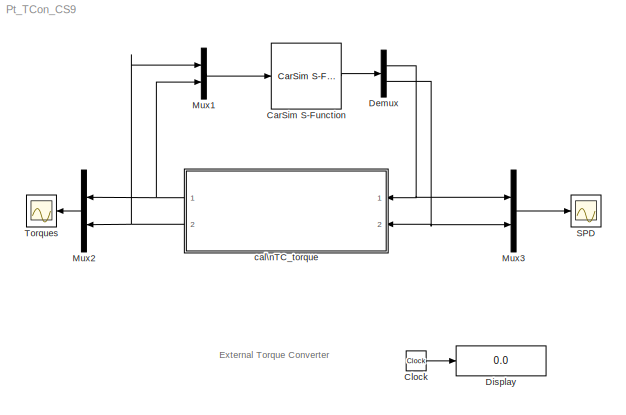
MODEL Pt_TCon_CS9
KIND model
CONFIG PreLoadFcn = cd Extensions/Simulink/pt_tcon	\nmengine_carpet_eclass	\ntorq_conv_map_eclass	\nRun_ft4wd_eclass	\ncd ../../..
BLOCK [Reference] CarSim S-Function  REF=Solver_SF/CarSim S-Function
  Ports = [1, 1]
  Priority = 1
  SID = 1
  SIMFILE = simfile.sim
  SourceBlock = Solver_SF/CarSim S-Function
  SourceType = Vehicle math model library
BLOCK [Clock] Clock
  Decimation = 10
  SID = 2
BLOCK [Demux] Demux
  Outputs = 2
  Ports = [1, 2]
  SID = 3
BLOCK [Display] Display
  Decimation = 1
  Lockdown = off
  Ports = [1]
  SID = 4
BLOCK [Mux] Mux1
  DisplayOption = bar
  Inputs = 2
  Ports = [2, 1]
  SID = 6
BLOCK [Mux] Mux2
  DisplayOption = bar
  Inputs = 2
  Ports = [2, 1]
  SID = 7
BLOCK [Mux] Mux3
  DisplayOption = bar
  Inputs = 2
  Ports = [2, 1]
  SID = 8
BLOCK [Scope] SPD
  DataFormat = StructureWithTime
  Floating = off
  LimitDataPoints = off
  NumInputPorts = 1
  Ports = [1]
  SID = 9
  TimeRange = 20
  YMax = 6500
  YMin = 0
BLOCK [Scope] Torques
  DataFormat = StructureWithTime
  Floating = off
  LimitDataPoints = off
  NumInputPorts = 1
  Ports = [1]
  SID = 10
  TimeRange = 20
  YMax = 700
  YMin = 0
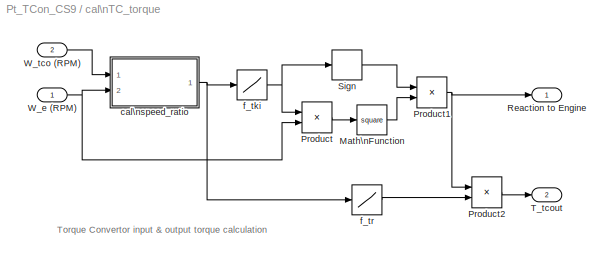
BLOCK [SubSystem] cal\nTC_torque
  FunctionWithSeparateData = off
  MaskHideContents = off
  MinAlgLoopOccurrences = off
  Opaque = off
  Ports = [2, 2]
  PropExecContextOutsideSubsystem = off
  RTWSystemCode = Auto
  RequestExecContextInheritance = off
  SID = 11
BLOCK [Math] cal\nTC_torque/Math\nFunction
  Operator = square
  Ports = [1, 1]
  SID = 14
BLOCK [Product] cal\nTC_torque/Product
  Ports = [2, 1]
  RndMeth = Floor
  SID = 15
BLOCK [Product] cal\nTC_torque/Product1
  Ports = [2, 1]
  RndMeth = Floor
  SID = 16
BLOCK [Product] cal\nTC_torque/Product2
  Ports = [2, 1]
  RndMeth = Floor
  SID = 17
BLOCK [Outport] cal\nTC_torque/Reaction to Engine
  IconDisplay = Port number
  SID = 29
BLOCK [Signum] cal\nTC_torque/Sign
  SID = 18
BLOCK [Outport] cal\nTC_torque/T_tcout
  IconDisplay = Port number
  Port = 2
  SID = 30
BLOCK [Inport] cal\nTC_torque/W_e (RPM)
  IconDisplay = Port number
  SID = 12
BLOCK [Inport] cal\nTC_torque/W_tco (RPM)
  IconDisplay = Port number
  Port = 2
  SID = 13
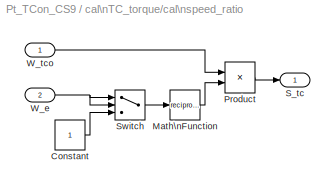
BLOCK [SubSystem] cal\nTC_torque/cal\nspeed_ratio
  FunctionWithSeparateData = off
  MaskHideContents = off
  MinAlgLoopOccurrences = off
  Opaque = off
  Ports = [2, 1]
  PropExecContextOutsideSubsystem = off
  RTWSystemCode = Auto
  RequestExecContextInheritance = off
  SID = 19
BLOCK [Constant] cal\nTC_torque/cal\nspeed_ratio/Constant
  SID = 22
BLOCK [Math] cal\nTC_torque/cal\nspeed_ratio/Math\nFunction
  Operator = reciprocal
  Ports = [1, 1]
  SID = 23
BLOCK [Product] cal\nTC_torque/cal\nspeed_ratio/Product
  Ports = [2, 1]
  RndMeth = Floor
  SID = 24
BLOCK [Outport] cal\nTC_torque/cal\nspeed_ratio/S_tc
  IconDisplay = Port number
  SID = 26
BLOCK [Switch] cal\nTC_torque/cal\nspeed_ratio/Switch
  SID = 25
  Threshold = 1
BLOCK [Inport] cal\nTC_torque/cal\nspeed_ratio/W_e
  IconDisplay = Port number
  Port = 2
  SID = 21
BLOCK [Inport] cal\nTC_torque/cal\nspeed_ratio/W_tco
  IconDisplay = Port number
  SID = 20
BLOCK [Lookup] cal\nTC_torque/f_tki
  InputValues = INV_CAP_TC_TABLE(:,1)
  SID = 27
  Table = INV_CAP_TC_TABLE(:,2)
BLOCK [Lookup] cal\nTC_torque/f_tr
  InputValues = RM_TC_TABLE(:,1)
  SID = 28
  Table = RM_TC_TABLE(:,2)
ANNOTATION (root): External Torque Converter
ANNOTATION cal\nTC_torque: Torque Convertor input & output torque calculation
LINE CarSim S-Function:1 -> Demux:1
LINE Clock:1 -> Display:1
NET Demux:1 -> Mux3:1, cal\nTC_torque:1
NET Demux:2 -> Mux3:2, cal\nTC_torque:2
LINE Mux1:1 -> CarSim S-Function:1
LINE Mux2:1 -> Torques:1
LINE Mux3:1 -> SPD:1
LINE cal\nTC_torque/Math\nFunction:1 -> cal\nTC_torque/Product1:2
NET cal\nTC_torque/Product1:1 -> cal\nTC_torque/Product2:1, cal\nTC_torque/Reaction to Engine:1
LINE cal\nTC_torque/Product2:1 -> cal\nTC_torque/T_tcout:1
LINE cal\nTC_torque/Product:1 -> cal\nTC_torque/Math\nFunction:1
LINE cal\nTC_torque/Sign:1 -> cal\nTC_torque/Product1:1
NET cal\nTC_torque/W_e (RPM):1 -> cal\nTC_torque/Product:2, cal\nTC_torque/cal\nspeed_ratio:2
LINE cal\nTC_torque/W_tco (RPM):1 -> cal\nTC_torque/cal\nspeed_ratio:1
LINE cal\nTC_torque/cal\nspeed_ratio/Constant:1 -> cal\nTC_torque/cal\nspeed_ratio/Switch:3
LINE cal\nTC_torque/cal\nspeed_ratio/Math\nFunction:1 -> cal\nTC_torque/cal\nspeed_ratio/Product:2
LINE cal\nTC_torque/cal\nspeed_ratio/Product:1 -> cal\nTC_torque/cal\nspeed_ratio/S_tc:1
LINE cal\nTC_torque/cal\nspeed_ratio/Switch:1 -> cal\nTC_torque/cal\nspeed_ratio/Math\nFunction:1
NET cal\nTC_torque/cal\nspeed_ratio/W_e:1 -> cal\nTC_torque/cal\nspeed_ratio/Switch:1, cal\nTC_torque/cal\nspeed_ratio/Switch:2
LINE cal\nTC_torque/cal\nspeed_ratio/W_tco:1 -> cal\nTC_torque/cal\nspeed_ratio/Product:1
NET cal\nTC_torque/cal\nspeed_ratio:1 -> cal\nTC_torque/f_tki:1, cal\nTC_torque/f_tr:1
NET cal\nTC_torque/f_tki:1 -> cal\nTC_torque/Product:1, cal\nTC_torque/Sign:1
LINE cal\nTC_torque/f_tr:1 -> cal\nTC_torque/Product2:2
NET cal\nTC_torque:1 -> Mux1:2, Mux2:1
NET cal\nTC_torque:2 -> Mux1:1, Mux2:2
note: NET lines group one-source signal fan-out (src -> all destinations, sorted); 1:1 wires keep LINE
